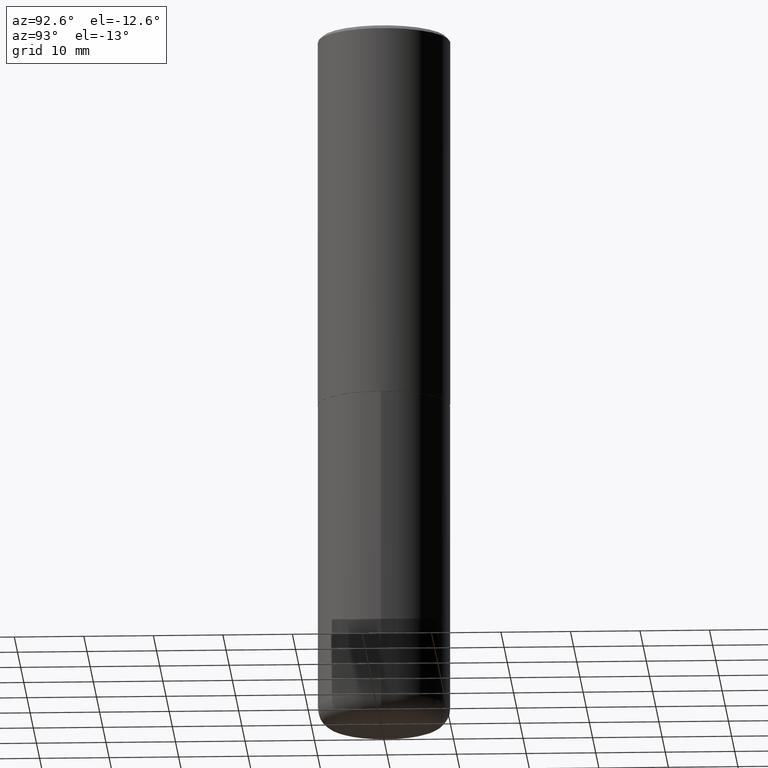
[diagram: clean part render]
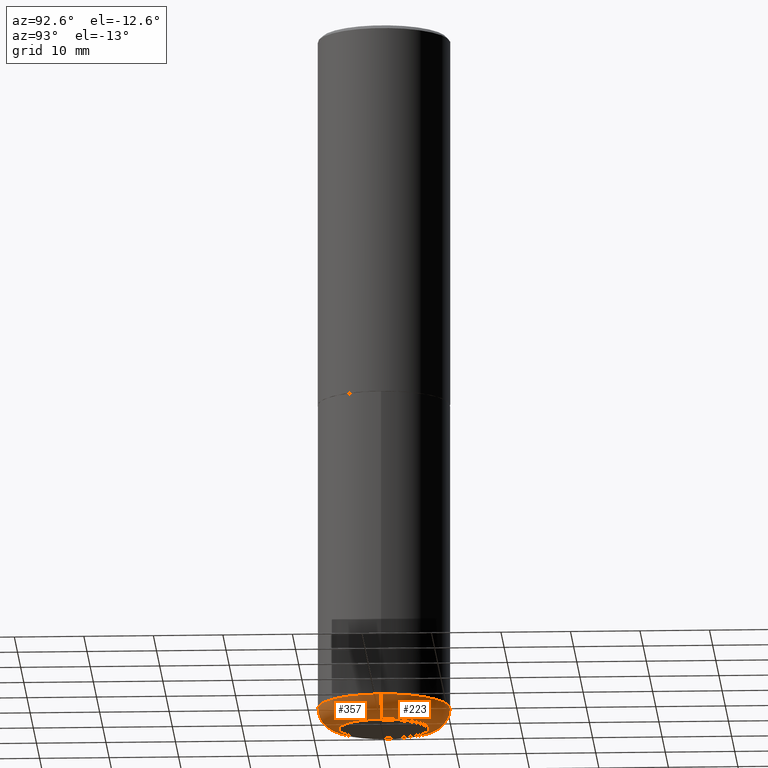
[diagram: same view with one multi-face feature highlighted, each face labeled with its STEP entity id]
A machine part, auxiliary view. The highlighted faces form ONE feature: a constant-radius fillet chain: 2 tangent blend faces with common blend radius 3.048 mm. The faces share edges in the B-rep.
Their STEP definitions:
[1] entity #223 (Torus):
#9 = VERTEX_POINT ( 'NONE', #118 ) ;
#41 = ORIENTED_EDGE ( 'NONE', *, *, #135, .T. ) ;
#49 = DIRECTION ( 'NONE',  ( -6.982962677686266711E-15, -1.000000000000000000, 3.491481338843145583E-15 ) ) ;
#59 = CARTESIAN_POINT ( 'NONE',  ( 9.488418967998330085E-29, -1.354694759471140570E-14, -3.880000000000000338 ) ) ;
#69 = VERTEX_POINT ( 'NONE', #139 ) ;
#79 = CIRCLE ( 'NONE', #111, 0.2550000000000000044 ) ;
#85 = AXIS2_PLACEMENT_3D ( 'NONE', #403, #244, #207 ) ;
#86 = DIRECTION ( 'NONE',  ( -2.445468806185136597E-29, 3.491481338843145583E-15, 1.000000000000000000 ) ) ;
#97 = VERTEX_POINT ( 'NONE', #404 ) ;
#105 = EDGE_CURVE ( 'NONE', #69, #370, #395, .T. ) ;
#111 = AXIS2_PLACEMENT_3D ( 'NONE', #385, #86, #251 ) ;
#117 = DIRECTION ( 'NONE',  ( 7.105427357601001859E-15, 1.000000000000000000, -3.491481338843145583E-15 ) ) ;
#118 = CARTESIAN_POINT ( 'NONE',  ( 0.2550000000000000044, -1.574658083818258381E-14, -4.000000000000000888 ) ) ;
#131 = CIRCLE ( 'NONE', #323, 0.1200000000000002176 ) ;
#135 = EDGE_CURVE ( 'NONE', #9, #69, #79, .T. ) ;
#139 = CARTESIAN_POINT ( 'NONE',  ( -0.2550000000000000044, -1.151822685739767881E-14, -4.000000000000000888 ) ) ;
#141 = CARTESIAN_POINT ( 'NONE',  ( -0.3750000000000001110, -1.088241233561102684E-14, -3.880000000000000338 ) ) ;
#162 = CIRCLE ( 'NONE', #85, 0.3750000000000000555 ) ;
#207 = DIRECTION ( 'NONE',  ( 1.000000000000000000, -6.982962677686266711E-15, 0.000000000000000000 ) ) ;
#217 = DIRECTION ( 'NONE',  ( -2.445468806185136597E-29, 3.491481338843145583E-15, 1.000000000000000000 ) ) ;
#218 = EDGE_CURVE ( 'NONE', #97, #370, #162, .T. ) ;
#223 = ADVANCED_FACE ( 'NONE', ( #339 ), #301, .T. ) ;
#231 = CARTESIAN_POINT ( 'NONE',  ( 0.2550000000000000044, -1.532760307752140402E-14, -3.880000000000000338 ) ) ;
#234 = ORIENTED_EDGE ( 'NONE', *, *, #275, .F. ) ;
#244 = DIRECTION ( 'NONE',  ( -2.445468806185136597E-29, 3.491481338843145583E-15, 1.000000000000000000 ) ) ;
#251 = DIRECTION ( 'NONE',  ( 1.000000000000000000, -6.982962677686267499E-15, 0.000000000000000000 ) ) ;
#264 = EDGE_LOOP ( 'NONE', ( #41, #270, #359, #234 ) ) ;
#270 = ORIENTED_EDGE ( 'NONE', *, *, #105, .T. ) ;
#275 = EDGE_CURVE ( 'NONE', #9, #97, #131, .T. ) ;
#278 = CARTESIAN_POINT ( 'NONE',  ( -0.2550000000000000044, -1.173506361852314940E-14, -3.880000000000000338 ) ) ;
#292 = DIRECTION ( 'NONE',  ( 1.000000000000000000, -6.982962677686272233E-15, 0.000000000000000000 ) ) ;
#301 = TOROIDAL_SURFACE ( 'NONE', #351, 0.2550000000000000044, 0.1200000000000001898 ) ;
#319 = DIRECTION ( 'NONE',  ( -1.000000000000000000, 7.105427357600994759E-15, 0.000000000000000000 ) ) ;
#323 = AXIS2_PLACEMENT_3D ( 'NONE', #231, #49, #292 ) ;
#339 = FACE_OUTER_BOUND ( 'NONE', #264, .T. ) ;
#351 = AXIS2_PLACEMENT_3D ( 'NONE', #59, #217, #377 ) ;
#359 = ORIENTED_EDGE ( 'NONE', *, *, #218, .F. ) ;
#370 = VERTEX_POINT ( 'NONE', #141 ) ;
#372 = AXIS2_PLACEMENT_3D ( 'NONE', #278, #117, #319 ) ;
#377 = DIRECTION ( 'NONE',  ( 1.000000000000000000, -6.982962677686263555E-15, 4.883557194083111219E-29 ) ) ;
#385 = CARTESIAN_POINT ( 'NONE',  ( 9.781875224740547508E-29, -1.396592535537258391E-14, -4.000000000000000888 ) ) ;
#395 = CIRCLE ( 'NONE', #372, 0.1200000000000002176 ) ;
#403 = CARTESIAN_POINT ( 'NONE',  ( 9.488418967998330085E-29, -1.354694759471140570E-14, -3.880000000000000338 ) ) ;
#404 = CARTESIAN_POINT ( 'NONE',  ( 0.3750000000000001110, -1.616555859884375729E-14, -3.880000000000000338 ) ) ;
[2] entity #357 (Torus):
#2 = EDGE_CURVE ( 'NONE', #69, #9, #322, .T. ) ;
#8 = CARTESIAN_POINT ( 'NONE',  ( 9.781875224740547508E-29, -1.396592535537258391E-14, -4.000000000000000888 ) ) ;
#9 = VERTEX_POINT ( 'NONE', #118 ) ;
#46 = ORIENTED_EDGE ( 'NONE', *, *, #2, .T. ) ;
#49 = DIRECTION ( 'NONE',  ( -6.982962677686266711E-15, -1.000000000000000000, 3.491481338843145583E-15 ) ) ;
#51 = AXIS2_PLACEMENT_3D ( 'NONE', #408, #282, #250 ) ;
#69 = VERTEX_POINT ( 'NONE', #139 ) ;
#71 = EDGE_LOOP ( 'NONE', ( #243, #46, #330, #300 ) ) ;
#97 = VERTEX_POINT ( 'NONE', #404 ) ;
#105 = EDGE_CURVE ( 'NONE', #69, #370, #395, .T. ) ;
#117 = DIRECTION ( 'NONE',  ( 7.105427357601001859E-15, 1.000000000000000000, -3.491481338843145583E-15 ) ) ;
#118 = CARTESIAN_POINT ( 'NONE',  ( 0.2550000000000000044, -1.574658083818258381E-14, -4.000000000000000888 ) ) ;
#131 = CIRCLE ( 'NONE', #323, 0.1200000000000002176 ) ;
#139 = CARTESIAN_POINT ( 'NONE',  ( -0.2550000000000000044, -1.151822685739767881E-14, -4.000000000000000888 ) ) ;
#141 = CARTESIAN_POINT ( 'NONE',  ( -0.3750000000000001110, -1.088241233561102684E-14, -3.880000000000000338 ) ) ;
#205 = EDGE_CURVE ( 'NONE', #370, #97, #329, .T. ) ;
#221 = DIRECTION ( 'NONE',  ( 1.000000000000000000, -6.982962677686267499E-15, 0.000000000000000000 ) ) ;
#231 = CARTESIAN_POINT ( 'NONE',  ( 0.2550000000000000044, -1.532760307752140402E-14, -3.880000000000000338 ) ) ;
#235 = DIRECTION ( 'NONE',  ( 1.000000000000000000, -6.982962677686266711E-15, 0.000000000000000000 ) ) ;
#239 = DIRECTION ( 'NONE',  ( -2.445468806185136597E-29, 3.491481338843145583E-15, 1.000000000000000000 ) ) ;
#243 = ORIENTED_EDGE ( 'NONE', *, *, #105, .F. ) ;
#250 = DIRECTION ( 'NONE',  ( 1.000000000000000000, -6.982962677686263555E-15, 4.883557194083111219E-29 ) ) ;
#275 = EDGE_CURVE ( 'NONE', #9, #97, #131, .T. ) ;
#278 = CARTESIAN_POINT ( 'NONE',  ( -0.2550000000000000044, -1.173506361852314940E-14, -3.880000000000000338 ) ) ;
#282 = DIRECTION ( 'NONE',  ( -2.445468806185136597E-29, 3.491481338843145583E-15, 1.000000000000000000 ) ) ;
#291 = CARTESIAN_POINT ( 'NONE',  ( 9.488418967998330085E-29, -1.354694759471140570E-14, -3.880000000000000338 ) ) ;
#292 = DIRECTION ( 'NONE',  ( 1.000000000000000000, -6.982962677686272233E-15, 0.000000000000000000 ) ) ;
#300 = ORIENTED_EDGE ( 'NONE', *, *, #205, .F. ) ;
#308 = FACE_OUTER_BOUND ( 'NONE', #71, .T. ) ;
#319 = DIRECTION ( 'NONE',  ( -1.000000000000000000, 7.105427357600994759E-15, 0.000000000000000000 ) ) ;
#321 = AXIS2_PLACEMENT_3D ( 'NONE', #291, #239, #235 ) ;
#322 = CIRCLE ( 'NONE', #416, 0.2550000000000000044 ) ;
#323 = AXIS2_PLACEMENT_3D ( 'NONE', #231, #49, #292 ) ;
#329 = CIRCLE ( 'NONE', #321, 0.3750000000000000555 ) ;
#330 = ORIENTED_EDGE ( 'NONE', *, *, #275, .T. ) ;
#357 = ADVANCED_FACE ( 'NONE', ( #308 ), #407, .T. ) ;
#370 = VERTEX_POINT ( 'NONE', #141 ) ;
#372 = AXIS2_PLACEMENT_3D ( 'NONE', #278, #117, #319 ) ;
#392 = DIRECTION ( 'NONE',  ( -2.445468806185136597E-29, 3.491481338843145583E-15, 1.000000000000000000 ) ) ;
#395 = CIRCLE ( 'NONE', #372, 0.1200000000000002176 ) ;
#404 = CARTESIAN_POINT ( 'NONE',  ( 0.3750000000000001110, -1.616555859884375729E-14, -3.880000000000000338 ) ) ;
#407 = TOROIDAL_SURFACE ( 'NONE', #51, 0.2550000000000000044, 0.1200000000000001898 ) ;
#408 = CARTESIAN_POINT ( 'NONE',  ( 9.488418967998330085E-29, -1.354694759471140570E-14, -3.880000000000000338 ) ) ;
#416 = AXIS2_PLACEMENT_3D ( 'NONE', #8, #392, #221 ) ;